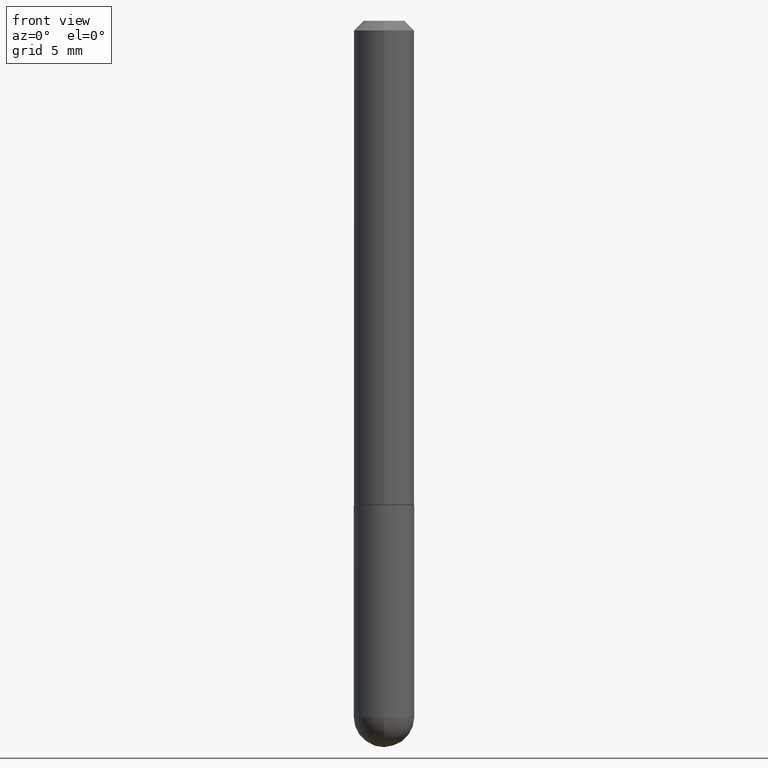
[diagram: clean part render]
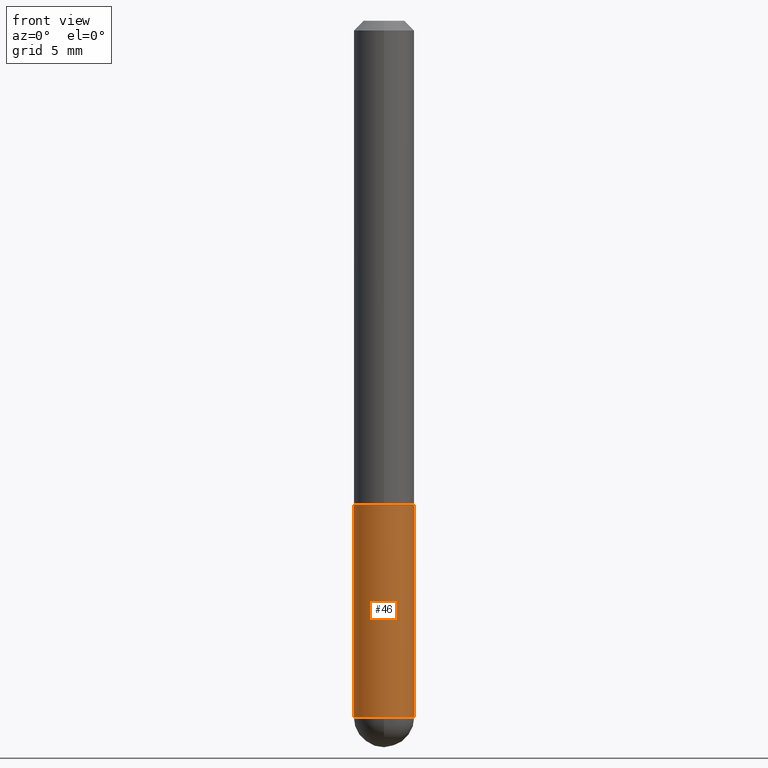
[diagram: same view with one face highlighted and labeled with its STEP entity id]
A machine part, front view. The second image highlights one B-rep face of the part: STEP entity #46.
In plain terms, the highlighted cylindrical surface (edge-blend (fillet) strip) has radius 1.5875 mm, axis along (-0, 0, 1).
Its self-contained STEP definition (entity closure, byte-faithful):
#4 = AXIS2_PLACEMENT_3D ( 'NONE', #338, #281, #409 ) ;
#10 = EDGE_CURVE ( 'NONE', #211, #109, #16, .T. ) ;
#16 = LINE ( 'NONE', #210, #79 ) ;
#20 = ORIENTED_EDGE ( 'NONE', *, *, #143, .F. ) ;
#23 = ORIENTED_EDGE ( 'NONE', *, *, #105, .T. ) ;
#27 = CARTESIAN_POINT ( 'NONE',  ( 0.06249999999999997918, -3.927916506198537646E-15, -1.000000000000000222 ) ) ;
#39 = AXIS2_PLACEMENT_3D ( 'NONE', #54, #145, #155 ) ;
#46 = ADVANCED_FACE ( 'NONE', ( #374 ), #286, .T. ) ;
#54 = CARTESIAN_POINT ( 'NONE',  ( 0.000000000000000000, 0.000000000000000000, 0.000000000000000000 ) ) ;
#66 = LINE ( 'NONE', #195, #137 ) ;
#79 = VECTOR ( 'NONE', #408, 39.37007874015748143 ) ;
#89 = DIRECTION ( 'NONE',  ( -2.445468806185136597E-29, 3.491481338843145583E-15, 1.000000000000000000 ) ) ;
#105 = EDGE_CURVE ( 'NONE', #282, #211, #406, .T. ) ;
#109 = VERTEX_POINT ( 'NONE', #27 ) ;
#120 = VERTEX_POINT ( 'NONE', #222 ) ;
#125 = DIRECTION ( 'NONE',  ( 1.000000000000000000, -6.982962677686265133E-15, 0.000000000000000000 ) ) ;
#137 = VECTOR ( 'NONE', #159, 39.37007874015748143 ) ;
#143 = EDGE_CURVE ( 'NONE', #266, #109, #352, .T. ) ;
#145 = DIRECTION ( 'NONE',  ( -2.445468806185136597E-29, 3.491481338843145583E-15, 1.000000000000000000 ) ) ;
#155 = DIRECTION ( 'NONE',  ( 1.000000000000000000, -6.982962677686267499E-15, 4.876176775795936353E-29 ) ) ;
#159 = DIRECTION ( 'NONE',  ( -2.445468806185136877E-29, 3.491481338843145188E-15, 1.000000000000000000 ) ) ;
#169 = CARTESIAN_POINT ( 'NONE',  ( -0.06249999999999997918, -3.811153671865022332E-15, -1.000000000000000222 ) ) ;
#176 = EDGE_CURVE ( 'NONE', #120, #282, #180, .T. ) ;
#177 = DIRECTION ( 'NONE',  ( 1.000000000000000000, -6.982962677686265133E-15, 0.000000000000000000 ) ) ;
#180 = CIRCLE ( 'NONE', #4, 0.06249999999999997918 ) ;
#195 = CARTESIAN_POINT ( 'NONE',  ( -0.06249999999999997918, 4.440892098500624683E-16, -3.074334431409315413E-30 ) ) ;
#210 = CARTESIAN_POINT ( 'NONE',  ( 0.06249999999999997918, -4.364351673553915708E-16, 3.047610484872459170E-30 ) ) ;
#211 = VERTEX_POINT ( 'NONE', #344 ) ;
#222 = CARTESIAN_POINT ( 'NONE',  ( -0.06249999999999997918, -3.811153671865022332E-15, -1.437500000000000222 ) ) ;
#248 = ORIENTED_EDGE ( 'NONE', *, *, #10, .T. ) ;
#250 = DIRECTION ( 'NONE',  ( -2.445468806185136597E-29, 3.491481338843145583E-15, 1.000000000000000000 ) ) ;
#255 = EDGE_CURVE ( 'NONE', #120, #266, #66, .T. ) ;
#266 = VERTEX_POINT ( 'NONE', #169 ) ;
#277 = AXIS2_PLACEMENT_3D ( 'NONE', #318, #250, #125 ) ;
#279 = ORIENTED_EDGE ( 'NONE', *, *, #176, .T. ) ;
#281 = DIRECTION ( 'NONE',  ( -2.445468806185136597E-29, 3.491481338843145583E-15, 1.000000000000000000 ) ) ;
#282 = VERTEX_POINT ( 'NONE', #390 ) ;
#286 = CYLINDRICAL_SURFACE ( 'NONE', #39, 0.06249999999999997918 ) ;
#301 = ORIENTED_EDGE ( 'NONE', *, *, #255, .F. ) ;
#318 = CARTESIAN_POINT ( 'NONE',  ( 3.515361408891134418E-29, -5.019004424587023131E-15, -1.437500000000000222 ) ) ;
#331 = AXIS2_PLACEMENT_3D ( 'NONE', #376, #89, #177 ) ;
#338 = CARTESIAN_POINT ( 'NONE',  ( 3.515361408891134418E-29, -5.019004424587023131E-15, -1.437500000000000222 ) ) ;
#344 = CARTESIAN_POINT ( 'NONE',  ( 0.06249999999999997918, -4.691678049070475040E-15, -1.437500000000000222 ) ) ;
#352 = CIRCLE ( 'NONE', #331, 0.06249999999999997918 ) ;
#369 = EDGE_LOOP ( 'NONE', ( #301, #279, #23, #248, #20 ) ) ;
#374 = FACE_OUTER_BOUND ( 'NONE', #369, .T. ) ;
#376 = CARTESIAN_POINT ( 'NONE',  ( 2.445468806185136877E-29, -3.491481338843145977E-15, -1.000000000000000222 ) ) ;
#390 = CARTESIAN_POINT ( 'NONE',  ( -4.440892098500296812E-16, -0.06250000000000534295, -1.437500000000000000 ) ) ;
#406 = CIRCLE ( 'NONE', #277, 0.06249999999999997918 ) ;
#408 = DIRECTION ( 'NONE',  ( -2.445468806185136877E-29, 3.491481338843145188E-15, 1.000000000000000000 ) ) ;
#409 = DIRECTION ( 'NONE',  ( 1.000000000000000000, -6.982962677686265133E-15, 0.000000000000000000 ) ) ;